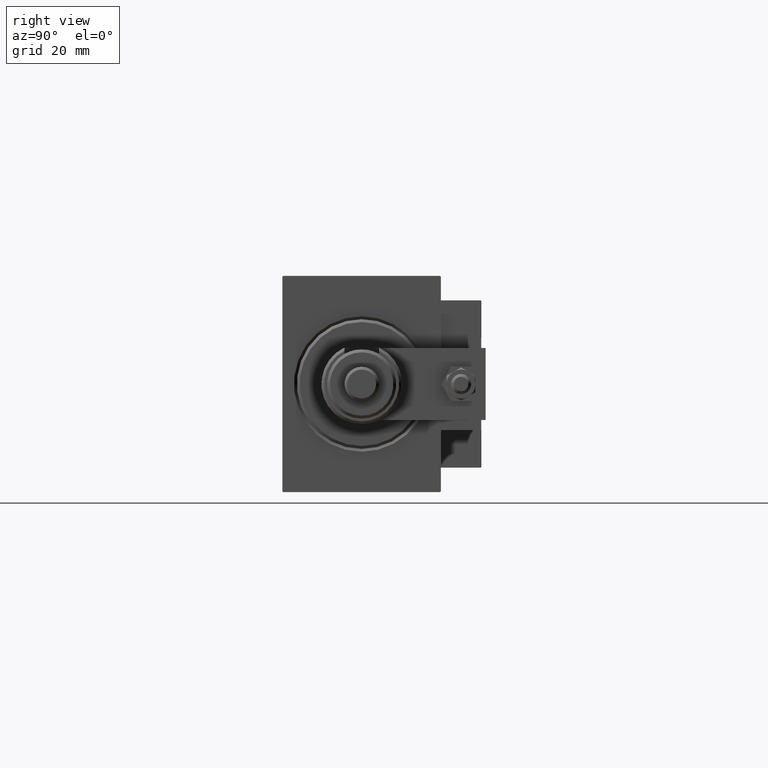
[diagram: clean part render]
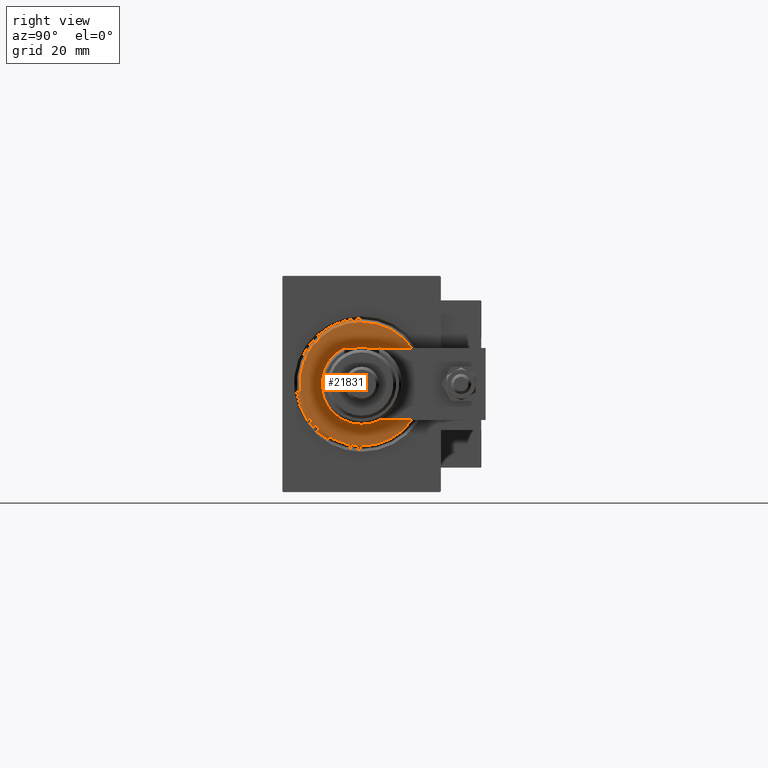
[diagram: same view with one face highlighted and labeled with its STEP entity id]
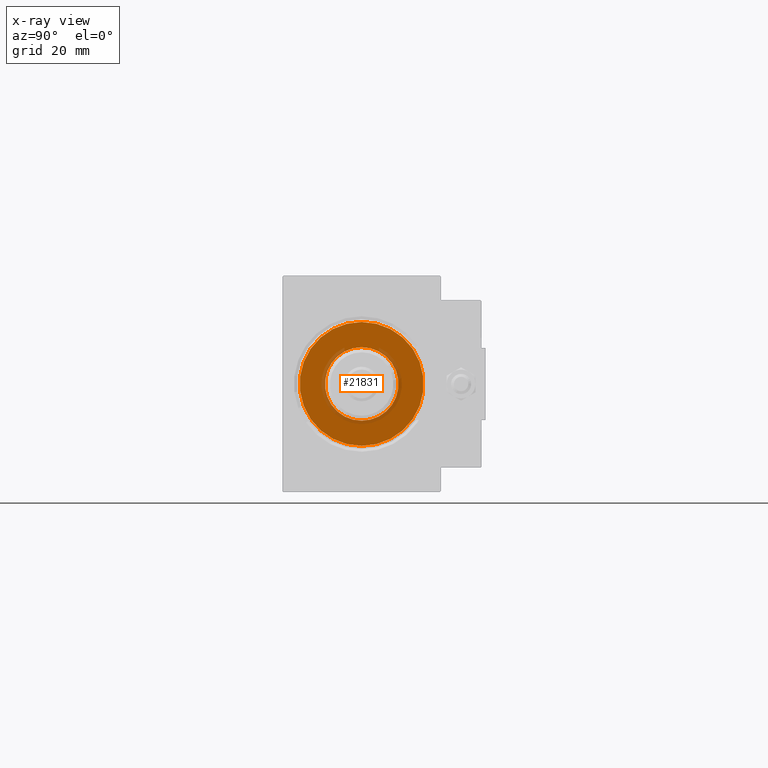
[diagram: x-ray of the same camera — body ghosted, the highlighted face saturated]
A machine part, right view. The second image highlights one B-rep face of the part: STEP entity #21831.
The next image is the same camera in x-ray: the body ghosted, the highlighted face saturated — about 10% of this face is hidden behind the body in this view.
In plain terms, the highlighted planar face has unit normal (1, 0, 0).
Its self-contained STEP definition (entity closure, byte-faithful):
#1152 = CIRCLE ( 'NONE', #44764, 12.75000000000000000 ) ;
#1790 = DIRECTION ( 'NONE',  ( 0.000000000000000000, 0.000000000000000000, -1.000000000000000000 ) ) ;
#2241 = CARTESIAN_POINT ( 'NONE',  ( 3.000000000000000000, 0.000000000000000000, 21.50000000000000000 ) ) ;
#6009 = DIRECTION ( 'NONE',  ( 0.000000000000000000, 0.000000000000000000, -1.000000000000000000 ) ) ;
#6070 = ORIENTED_EDGE ( 'NONE', *, *, #34783, .T. ) ;
#6510 = FACE_BOUND ( 'NONE', #50862, .T. ) ;
#7072 = AXIS2_PLACEMENT_3D ( 'NONE', #42965, #42711, #6009 ) ;
#7140 = CIRCLE ( 'NONE', #31912, 12.75000000000000000 ) ;
#9115 = CARTESIAN_POINT ( 'NONE',  ( 3.000000000000000000, 0.000000000000000000, 0.000000000000000000 ) ) ;
#10094 = DIRECTION ( 'NONE',  ( 1.000000000000000000, -0.000000000000000000, 0.000000000000000000 ) ) ;
#11309 = EDGE_LOOP ( 'NONE', ( #6070, #33343 ) ) ;
#11809 = CARTESIAN_POINT ( 'NONE',  ( 3.000000000000000000, 0.000000000000000000, 0.000000000000000000 ) ) ;
#12188 = VERTEX_POINT ( 'NONE', #21887 ) ;
#13525 = CARTESIAN_POINT ( 'NONE',  ( 3.000000000000000000, 0.000000000000000000, 0.000000000000000000 ) ) ;
#14746 = DIRECTION ( 'NONE',  ( 0.000000000000000000, 0.000000000000000000, -1.000000000000000000 ) ) ;
#15803 = DIRECTION ( 'NONE',  ( 0.000000000000000000, 0.000000000000000000, -1.000000000000000000 ) ) ;
#16600 = DIRECTION ( 'NONE',  ( -1.000000000000000000, 0.000000000000000000, -0.000000000000000000 ) ) ;
#17929 = DIRECTION ( 'NONE',  ( 0.000000000000000000, 0.000000000000000000, -1.000000000000000000 ) ) ;
#20520 = EDGE_CURVE ( 'NONE', #31417, #22778, #36135, .T. ) ;
#21831 = ADVANCED_FACE ( 'NONE', ( #30889, #6510 ), #39199, .T. ) ;
#21887 = CARTESIAN_POINT ( 'NONE',  ( 3.000000000000000000, 0.000000000000000000, 12.75000000000000000 ) ) ;
#22778 = VERTEX_POINT ( 'NONE', #2241 ) ;
#26137 = EDGE_CURVE ( 'NONE', #43819, #12188, #1152, .T. ) ;
#27546 = CARTESIAN_POINT ( 'NONE',  ( 3.000000000000000000, 2.694222958124177204E-15, -21.50000000000000000 ) ) ;
#28952 = ORIENTED_EDGE ( 'NONE', *, *, #43188, .T. ) ;
#29856 = DIRECTION ( 'NONE',  ( -1.000000000000000000, 0.000000000000000000, -0.000000000000000000 ) ) ;
#30186 = CARTESIAN_POINT ( 'NONE',  ( 3.000000000000000000, 0.000000000000000000, 0.000000000000000000 ) ) ;
#30889 = FACE_OUTER_BOUND ( 'NONE', #11309, .T. ) ;
#30960 = ORIENTED_EDGE ( 'NONE', *, *, #26137, .T. ) ;
#31417 = VERTEX_POINT ( 'NONE', #27546 ) ;
#31912 = AXIS2_PLACEMENT_3D ( 'NONE', #13525, #29856, #14746 ) ;
#33343 = ORIENTED_EDGE ( 'NONE', *, *, #20520, .T. ) ;
#34783 = EDGE_CURVE ( 'NONE', #22778, #31417, #52206, .T. ) ;
#36135 = CIRCLE ( 'NONE', #42994, 21.50000000000000000 ) ;
#37788 = DIRECTION ( 'NONE',  ( 1.000000000000000000, -0.000000000000000000, 0.000000000000000000 ) ) ;
#38768 = CARTESIAN_POINT ( 'NONE',  ( 3.000000000000000000, 1.561424668912874914E-15, -12.75000000000000000 ) ) ;
#39199 = PLANE ( 'NONE',  #7072 ) ;
#42016 = AXIS2_PLACEMENT_3D ( 'NONE', #30186, #10094, #1790 ) ;
#42711 = DIRECTION ( 'NONE',  ( 1.000000000000000000, -0.000000000000000000, 0.000000000000000000 ) ) ;
#42965 = CARTESIAN_POINT ( 'NONE',  ( 3.000000000000000000, 0.000000000000000000, 0.000000000000000000 ) ) ;
#42994 = AXIS2_PLACEMENT_3D ( 'NONE', #9115, #37788, #17929 ) ;
#43188 = EDGE_CURVE ( 'NONE', #12188, #43819, #7140, .T. ) ;
#43819 = VERTEX_POINT ( 'NONE', #38768 ) ;
#44764 = AXIS2_PLACEMENT_3D ( 'NONE', #11809, #16600, #15803 ) ;
#50862 = EDGE_LOOP ( 'NONE', ( #28952, #30960 ) ) ;
#52206 = CIRCLE ( 'NONE', #42016, 21.50000000000000000 ) ;